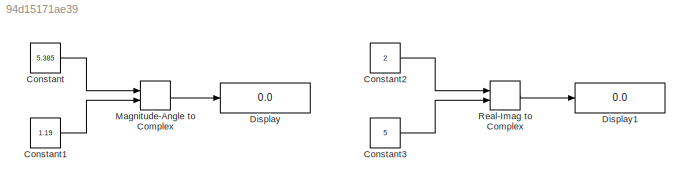
MODEL slx_94d15171ae39
KIND model
CONFIG AbsTol = auto
CONFIG EnableMultiTasking = off
CONFIG FixedStep = auto
CONFIG MaxStep = auto
CONFIG MinStep = auto
CONFIG RelTol = 1e-3
CONFIG SampleTimeConstraint = Unconstrained
CONFIG Solver = VariableStepAuto
CONFIG SolverName = VariableStepAuto
CONFIG StartTime = 0.0
CONFIG StopTime = 10.0
BLOCK [Constant] Constant
  Value = 5.385
BLOCK [Constant] Constant1
  Value = 1.19
BLOCK [Constant] Constant2
  Value = 2
BLOCK [Constant] Constant3
  Value = 5
BLOCK [Display] Display
  Decimation = 1
  Ports = [1]
BLOCK [Display] Display1
  Decimation = 1
  Ports = [1]
BLOCK [MagnitudeAngleToComplex] Magnitude-Angle to Complex
  Ports = [2, 1]
BLOCK [RealImagToComplex] Real-Imag to Complex
  Ports = [2, 1]
LINE Constant1:1 -> Magnitude-Angle to Complex:2
LINE Constant2:1 -> Real-Imag to Complex:1
LINE Constant3:1 -> Real-Imag to Complex:2
LINE Constant:1 -> Magnitude-Angle to Complex:1
LINE Magnitude-Angle to Complex:1 -> Display:1
LINE Real-Imag to Complex:1 -> Display1:1
